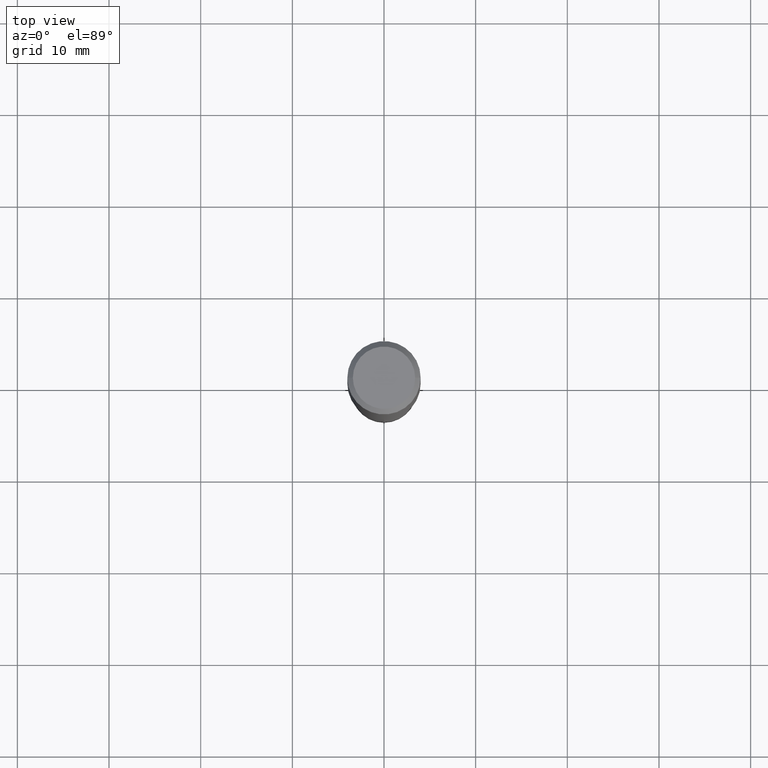
[diagram: clean part render]
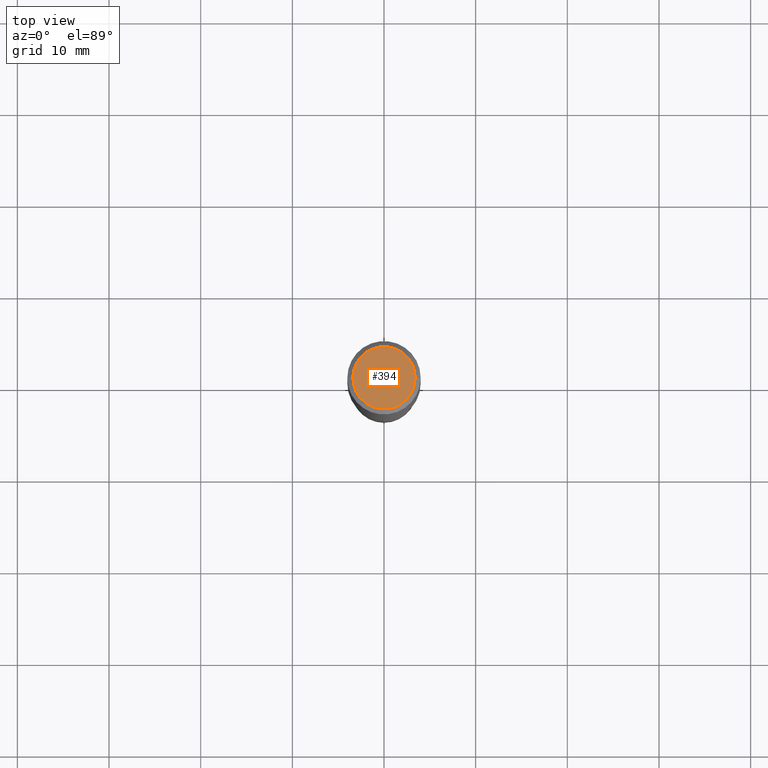
[diagram: same view with one face highlighted and labeled with its STEP entity id]
A machine part, top view. The second image highlights one B-rep face of the part: STEP entity #394.
In plain terms, the highlighted planar face has unit normal (0, -0, -1).
Its self-contained STEP definition (entity closure, byte-faithful):
#3 = EDGE_CURVE ( 'NONE', #472, #231, #437, .T. ) ;
#24 = CARTESIAN_POINT ( 'NONE',  ( 0.1338749999999999940, -1.040731925365424925E-15, 4.101342130351393887E-18 ) ) ;
#36 = DIRECTION ( 'NONE',  ( -1.000000000000000000, 6.982962677686265922E-15, -4.876176775795935793E-29 ) ) ;
#38 = DIRECTION ( 'NONE',  ( -2.445468806185136597E-29, 3.491481338843145583E-15, 1.000000000000000000 ) ) ;
#104 = AXIS2_PLACEMENT_3D ( 'NONE', #450, #38, #110 ) ;
#110 = DIRECTION ( 'NONE',  ( 1.000000000000000000, -6.982962677686266711E-15, 4.876170806578254279E-29 ) ) ;
#129 = FACE_OUTER_BOUND ( 'NONE', #259, .T. ) ;
#161 = PLANE ( 'NONE',  #166 ) ;
#166 = AXIS2_PLACEMENT_3D ( 'NONE', #303, #461, #36 ) ;
#179 = CIRCLE ( 'NONE', #386, 0.1338749999999999940 ) ;
#214 = ORIENTED_EDGE ( 'NONE', *, *, #3, .T. ) ;
#231 = VERTEX_POINT ( 'NONE', #478 ) ;
#259 = EDGE_LOOP ( 'NONE', ( #452, #214 ) ) ;
#303 = CARTESIAN_POINT ( 'NONE',  ( -5.014852121625167883E-47, 7.159879756154482429E-33, 2.050671065172242981E-18 ) ) ;
#318 = DIRECTION ( 'NONE',  ( 1.000000000000000000, -6.982962677686266711E-15, 4.876170806578254279E-29 ) ) ;
#327 = DIRECTION ( 'NONE',  ( -2.445468806185136597E-29, 3.491481338843145583E-15, 1.000000000000000000 ) ) ;
#386 = AXIS2_PLACEMENT_3D ( 'NONE', #468, #327, #318 ) ;
#394 = ADVANCED_FACE ( 'NONE', ( #129 ), #161, .F. ) ;
#433 = EDGE_CURVE ( 'NONE', #231, #472, #179, .T. ) ;
#437 = CIRCLE ( 'NONE', #104, 0.1338749999999999940 ) ;
#450 = CARTESIAN_POINT ( 'NONE',  ( -1.002970424325033577E-46, 1.431975951230896486E-32, 4.101342130344485961E-18 ) ) ;
#452 = ORIENTED_EDGE ( 'NONE', *, *, #433, .T. ) ;
#461 = DIRECTION ( 'NONE',  ( 2.438088387897960049E-29, -3.491481338843145188E-15, -1.000000000000000000 ) ) ;
#468 = CARTESIAN_POINT ( 'NONE',  ( -1.002970424325033577E-46, 1.431975951230896486E-32, 4.101342130344485961E-18 ) ) ;
#472 = VERTEX_POINT ( 'NONE', #24 ) ;
#478 = CARTESIAN_POINT ( 'NONE',  ( -0.1338749999999999940, 9.760872517903331886E-16, 4.101342130337804525E-18 ) ) ;